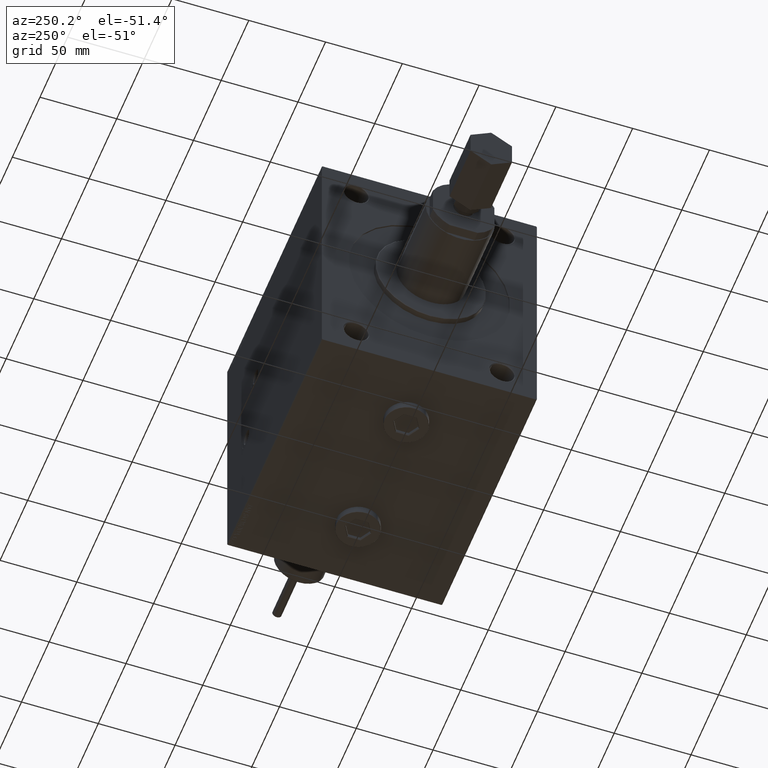
[diagram: clean part render]
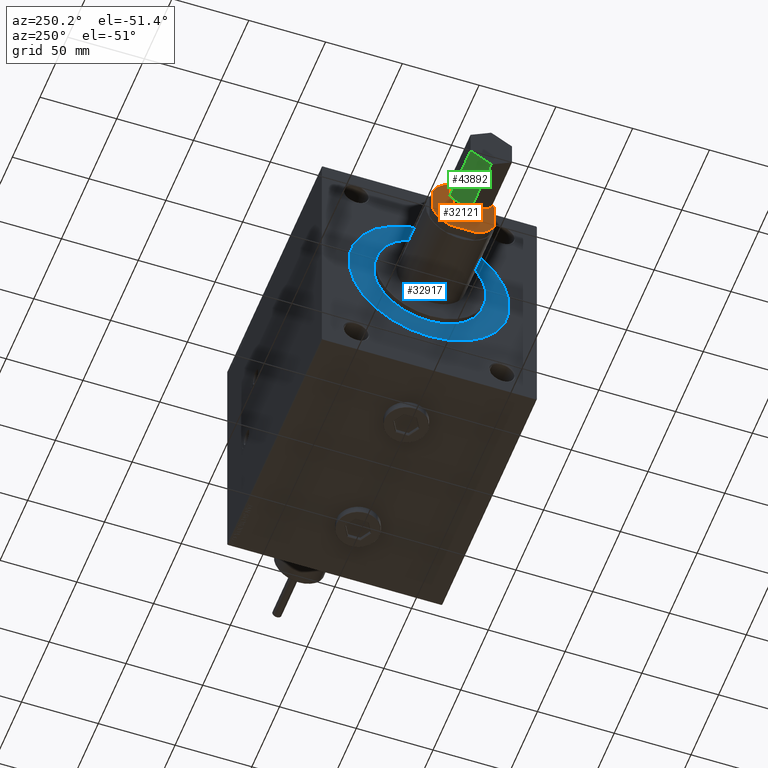
[diagram: same view with three faces highlighted in distinct colors, each labeled with its STEP entity id]
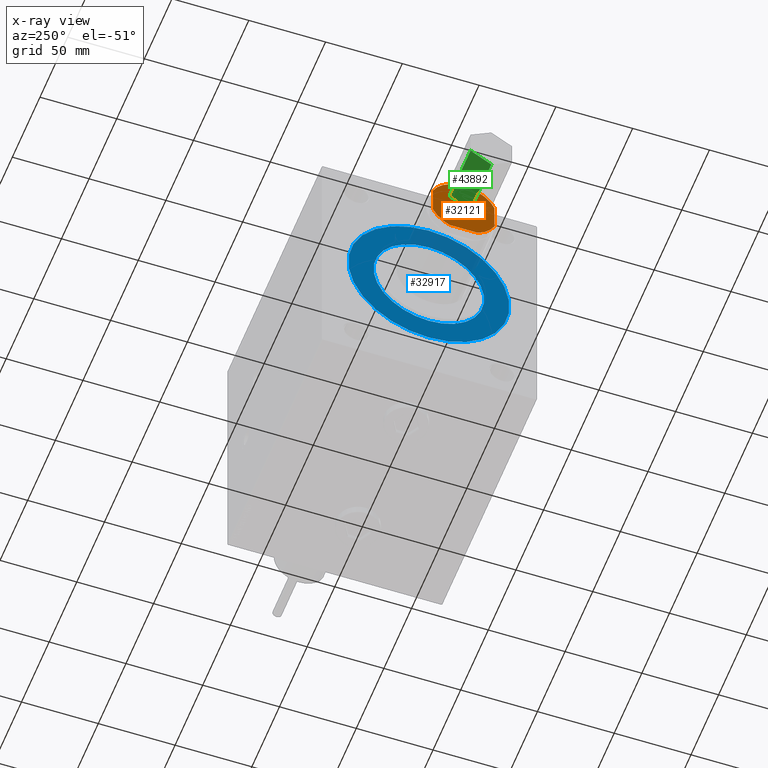
[diagram: x-ray of the same camera — body ghosted, the three highlighted faces saturated]
A machine part, auxiliary view with three faces highlighted in distinct colors.
The next image is the same camera in x-ray (body ghosted, the three faces saturated) — at least one of them is partly hidden behind the body in this view.
Their STEP definitions:

[orange] entity #32121 — the highlighted planar face has unit normal (-1, 0, 0).
#26 = CIRCLE ( 'NONE', #26834, 22.00000000000000000 ) ;
#205 = DIRECTION ( 'NONE',  ( -1.000000000000000000, -0.000000000000000000, -0.000000000000000000 ) ) ;
#412 = EDGE_LOOP ( 'NONE', ( #30623, #46969 ) ) ;
#1604 = CIRCLE ( 'NONE', #14193, 22.00000000000000000 ) ;
#2417 = VERTEX_POINT ( 'NONE', #11080 ) ;
#2530 = VERTEX_POINT ( 'NONE', #19348 ) ;
#4148 = CIRCLE ( 'NONE', #42751, 6.735000000000000320 ) ;
#4208 = DIRECTION ( 'NONE',  ( -1.000000000000000000, -0.000000000000000000, -0.000000000000000000 ) ) ;
#4359 = EDGE_CURVE ( 'NONE', #4792, #29156, #4893, .T. ) ;
#4607 = VERTEX_POINT ( 'NONE', #35273 ) ;
#4792 = VERTEX_POINT ( 'NONE', #10564 ) ;
#4893 = CIRCLE ( 'NONE', #23806, 6.735000000000000320 ) ;
#5033 = EDGE_LOOP ( 'NONE', ( #33528, #44550, #20747, #24198, #8564, #44807, #24634, #9821 ) ) ;
#5392 = CARTESIAN_POINT ( 'NONE',  ( 62.00000000000000000, 0.000000000000000000, 0.000000000000000000 ) ) ;
#5512 = VERTEX_POINT ( 'NONE', #29787 ) ;
#5820 = VECTOR ( 'NONE', #28017, 1000.000000000000000 ) ;
#6101 = DIRECTION ( 'NONE',  ( 1.000000000000000000, 0.000000000000000000, 0.000000000000000000 ) ) ;
#6414 = EDGE_CURVE ( 'NONE', #29036, #40839, #14380, .T. ) ;
#7703 = FACE_BOUND ( 'NONE', #412, .T. ) ;
#7949 = PLANE ( 'NONE',  #14939 ) ;
#8155 = AXIS2_PLACEMENT_3D ( 'NONE', #23404, #205, #15767 ) ;
#8454 = DIRECTION ( 'NONE',  ( 0.000000000000000000, 0.000000000000000000, -1.000000000000000000 ) ) ;
#8564 = ORIENTED_EDGE ( 'NONE', *, *, #6414, .F. ) ;
#9821 = ORIENTED_EDGE ( 'NONE', *, *, #11838, .T. ) ;
#10321 = VECTOR ( 'NONE', #11503, 1000.000000000000000 ) ;
#10564 = CARTESIAN_POINT ( 'NONE',  ( 62.00000000000000000, 8.247996192257424692E-16, -6.735000000000000320 ) ) ;
#11080 = CARTESIAN_POINT ( 'NONE',  ( 62.00000000000000000, 19.99999999999999645, 9.165151389911686763 ) ) ;
#11503 = DIRECTION ( 'NONE',  ( 0.000000000000000000, 0.000000000000000000, -1.000000000000000000 ) ) ;
#11838 = EDGE_CURVE ( 'NONE', #2530, #5512, #20703, .T. ) ;
#11865 = CARTESIAN_POINT ( 'NONE',  ( 62.00000000000000000, 0.000000000000000000, 0.000000000000000000 ) ) ;
#12002 = LINE ( 'NONE', #42818, #5820 ) ;
#13224 = VERTEX_POINT ( 'NONE', #14376 ) ;
#13585 = CARTESIAN_POINT ( 'NONE',  ( 62.00000000000000000, 9.165151389911683211, -19.99999999999999645 ) ) ;
#14193 = AXIS2_PLACEMENT_3D ( 'NONE', #22256, #38732, #27395 ) ;
#14376 = CARTESIAN_POINT ( 'NONE',  ( 62.00000000000000000, -20.00000000000000711, 9.165151389911661894 ) ) ;
#14380 = CIRCLE ( 'NONE', #31726, 22.00000000000000000 ) ;
#14939 = AXIS2_PLACEMENT_3D ( 'NONE', #31138, #31381, #8454 ) ;
#15767 = DIRECTION ( 'NONE',  ( 0.000000000000000000, 0.000000000000000000, -1.000000000000000000 ) ) ;
#16846 = VECTOR ( 'NONE', #35006, 1000.000000000000000 ) ;
#17537 = CARTESIAN_POINT ( 'NONE',  ( 62.00000000000000000, 0.000000000000000000, 0.000000000000000000 ) ) ;
#17974 = CARTESIAN_POINT ( 'NONE',  ( 62.00000000000000000, -20.00000000000000711, 19.99999999999999645 ) ) ;
#19348 = CARTESIAN_POINT ( 'NONE',  ( 62.00000000000000000, 9.165151389911672553, 20.00000000000000000 ) ) ;
#20202 = LINE ( 'NONE', #46590, #16846 ) ;
#20703 = LINE ( 'NONE', #43151, #23907 ) ;
#20747 = ORIENTED_EDGE ( 'NONE', *, *, #38113, .F. ) ;
#21135 = DIRECTION ( 'NONE',  ( 0.000000000000000000, 0.000000000000000000, -1.000000000000000000 ) ) ;
#22256 = CARTESIAN_POINT ( 'NONE',  ( 62.00000000000000000, 0.000000000000000000, 0.000000000000000000 ) ) ;
#23404 = CARTESIAN_POINT ( 'NONE',  ( 62.00000000000000000, 0.000000000000000000, 0.000000000000000000 ) ) ;
#23806 = AXIS2_PLACEMENT_3D ( 'NONE', #17537, #47629, #28877 ) ;
#23907 = VECTOR ( 'NONE', #28338, 1000.000000000000000 ) ;
#24198 = ORIENTED_EDGE ( 'NONE', *, *, #47796, .T. ) ;
#24634 = ORIENTED_EDGE ( 'NONE', *, *, #36928, .F. ) ;
#24837 = CARTESIAN_POINT ( 'NONE',  ( 62.00000000000000000, 0.000000000000000000, 0.000000000000000000 ) ) ;
#26834 = AXIS2_PLACEMENT_3D ( 'NONE', #11865, #4208, #41688 ) ;
#26941 = CARTESIAN_POINT ( 'NONE',  ( 62.00000000000000000, 0.000000000000000000, 6.735000000000000320 ) ) ;
#27395 = DIRECTION ( 'NONE',  ( 0.000000000000000000, 0.000000000000000000, -1.000000000000000000 ) ) ;
#28017 = DIRECTION ( 'NONE',  ( -0.000000000000000000, 1.000000000000000000, 1.734723475976807094E-16 ) ) ;
#28306 = DIRECTION ( 'NONE',  ( -1.000000000000000000, -0.000000000000000000, -0.000000000000000000 ) ) ;
#28338 = DIRECTION ( 'NONE',  ( 0.000000000000000000, -1.000000000000000000, -1.734723475976807094E-16 ) ) ;
#28877 = DIRECTION ( 'NONE',  ( 0.000000000000000000, 0.000000000000000000, -1.000000000000000000 ) ) ;
#29036 = VERTEX_POINT ( 'NONE', #29645 ) ;
#29156 = VERTEX_POINT ( 'NONE', #26941 ) ;
#29645 = CARTESIAN_POINT ( 'NONE',  ( 62.00000000000000000, 19.99999999999999289, -9.165151389911692092 ) ) ;
#29787 = CARTESIAN_POINT ( 'NONE',  ( 62.00000000000000000, -9.165151389911684987, 19.99999999999999645 ) ) ;
#30623 = ORIENTED_EDGE ( 'NONE', *, *, #42325, .F. ) ;
#31138 = CARTESIAN_POINT ( 'NONE',  ( 62.00000000000000000, 0.000000000000000000, 0.000000000000000000 ) ) ;
#31381 = DIRECTION ( 'NONE',  ( 1.000000000000000000, 0.000000000000000000, 0.000000000000000000 ) ) ;
#31726 = AXIS2_PLACEMENT_3D ( 'NONE', #5392, #28306, #36424 ) ;
#32121 = ADVANCED_FACE ( 'NONE', ( #7703, #45427 ), #7949, .T. ) ;
#33528 = ORIENTED_EDGE ( 'NONE', *, *, #43994, .F. ) ;
#35006 = DIRECTION ( 'NONE',  ( -0.000000000000000000, -0.000000000000000000, 1.000000000000000000 ) ) ;
#35112 = CARTESIAN_POINT ( 'NONE',  ( 62.00000000000000000, -9.165151389911672553, -20.00000000000000000 ) ) ;
#35273 = CARTESIAN_POINT ( 'NONE',  ( 62.00000000000000000, -20.00000000000001066, -9.165151389911651236 ) ) ;
#36424 = DIRECTION ( 'NONE',  ( 0.000000000000000000, 0.000000000000000000, -1.000000000000000000 ) ) ;
#36466 = CIRCLE ( 'NONE', #8155, 22.00000000000000000 ) ;
#36928 = EDGE_CURVE ( 'NONE', #2530, #2417, #1604, .T. ) ;
#38113 = EDGE_CURVE ( 'NONE', #42701, #4607, #26, .T. ) ;
#38732 = DIRECTION ( 'NONE',  ( -1.000000000000000000, -0.000000000000000000, -0.000000000000000000 ) ) ;
#38883 = EDGE_CURVE ( 'NONE', #13224, #4607, #46029, .T. ) ;
#40839 = VERTEX_POINT ( 'NONE', #13585 ) ;
#41688 = DIRECTION ( 'NONE',  ( 0.000000000000000000, 0.000000000000000000, -1.000000000000000000 ) ) ;
#42325 = EDGE_CURVE ( 'NONE', #29156, #4792, #4148, .T. ) ;
#42701 = VERTEX_POINT ( 'NONE', #35112 ) ;
#42751 = AXIS2_PLACEMENT_3D ( 'NONE', #24837, #6101, #21135 ) ;
#42818 = CARTESIAN_POINT ( 'NONE',  ( 62.00000000000000000, 19.99999999999999289, -19.99999999999999645 ) ) ;
#43151 = CARTESIAN_POINT ( 'NONE',  ( 62.00000000000000000, 19.99999999999999289, 20.00000000000000355 ) ) ;
#43994 = EDGE_CURVE ( 'NONE', #13224, #5512, #36466, .T. ) ;
#44550 = ORIENTED_EDGE ( 'NONE', *, *, #38883, .T. ) ;
#44807 = ORIENTED_EDGE ( 'NONE', *, *, #48287, .T. ) ;
#45427 = FACE_OUTER_BOUND ( 'NONE', #5033, .T. ) ;
#46029 = LINE ( 'NONE', #17974, #10321 ) ;
#46590 = CARTESIAN_POINT ( 'NONE',  ( 62.00000000000000000, 19.99999999999999289, 20.00000000000000355 ) ) ;
#46969 = ORIENTED_EDGE ( 'NONE', *, *, #4359, .F. ) ;
#47629 = DIRECTION ( 'NONE',  ( 1.000000000000000000, 0.000000000000000000, 0.000000000000000000 ) ) ;
#47796 = EDGE_CURVE ( 'NONE', #42701, #40839, #12002, .T. ) ;
#48287 = EDGE_CURVE ( 'NONE', #29036, #2417, #20202, .T. ) ;

[blue] entity #32917 — the highlighted planar face has unit normal (-1, 0, 0).
#1075 = CIRCLE ( 'NONE', #44387, 36.00000000000000000 ) ;
#1538 = DIRECTION ( 'NONE',  ( 0.000000000000000000, 0.000000000000000000, -1.000000000000000000 ) ) ;
#1901 = AXIS2_PLACEMENT_3D ( 'NONE', #25513, #25754, #33630 ) ;
#2534 = DIRECTION ( 'NONE',  ( 0.000000000000000000, 0.000000000000000000, -1.000000000000000000 ) ) ;
#6148 = AXIS2_PLACEMENT_3D ( 'NONE', #25942, #36562, #2534 ) ;
#8270 = VERTEX_POINT ( 'NONE', #39932 ) ;
#8556 = AXIS2_PLACEMENT_3D ( 'NONE', #36813, #18072, #33109 ) ;
#8849 = CARTESIAN_POINT ( 'NONE',  ( 170.1999999999999886, 0.000000000000000000, 0.000000000000000000 ) ) ;
#9195 = PLANE ( 'NONE',  #12648 ) ;
#9647 = EDGE_CURVE ( 'NONE', #47895, #28787, #43635, .T. ) ;
#12648 = AXIS2_PLACEMENT_3D ( 'NONE', #45939, #46674, #1538 ) ;
#14832 = CIRCLE ( 'NONE', #8556, 52.50000000000000000 ) ;
#15860 = FACE_OUTER_BOUND ( 'NONE', #44502, .T. ) ;
#18072 = DIRECTION ( 'NONE',  ( 1.000000000000000000, 0.000000000000000000, 0.000000000000000000 ) ) ;
#20663 = DIRECTION ( 'NONE',  ( 0.000000000000000000, 0.000000000000000000, -1.000000000000000000 ) ) ;
#24088 = EDGE_LOOP ( 'NONE', ( #26880, #41282 ) ) ;
#25513 = CARTESIAN_POINT ( 'NONE',  ( 170.1999999999999886, 0.000000000000000000, 0.000000000000000000 ) ) ;
#25521 = CARTESIAN_POINT ( 'NONE',  ( 170.1999999999999886, 4.408728476930470856E-15, -36.00000000000000000 ) ) ;
#25754 = DIRECTION ( 'NONE',  ( 1.000000000000000000, 0.000000000000000000, 0.000000000000000000 ) ) ;
#25942 = CARTESIAN_POINT ( 'NONE',  ( 170.1999999999999886, 0.000000000000000000, 0.000000000000000000 ) ) ;
#26171 = VERTEX_POINT ( 'NONE', #27910 ) ;
#26880 = ORIENTED_EDGE ( 'NONE', *, *, #47572, .F. ) ;
#27910 = CARTESIAN_POINT ( 'NONE',  ( 170.1999999999999886, 6.429395695523603956E-15, 52.50000000000000000 ) ) ;
#28098 = EDGE_CURVE ( 'NONE', #8270, #26171, #36867, .T. ) ;
#28787 = VERTEX_POINT ( 'NONE', #34650 ) ;
#29124 = EDGE_CURVE ( 'NONE', #26171, #8270, #14832, .T. ) ;
#31634 = FACE_BOUND ( 'NONE', #24088, .T. ) ;
#32917 = ADVANCED_FACE ( 'NONE', ( #31634, #15860 ), #9195, .T. ) ;
#33109 = DIRECTION ( 'NONE',  ( 0.000000000000000000, 0.000000000000000000, -1.000000000000000000 ) ) ;
#33630 = DIRECTION ( 'NONE',  ( 0.000000000000000000, 0.000000000000000000, -1.000000000000000000 ) ) ;
#34650 = CARTESIAN_POINT ( 'NONE',  ( 170.1999999999999886, 0.000000000000000000, 36.00000000000000000 ) ) ;
#36562 = DIRECTION ( 'NONE',  ( 1.000000000000000000, 0.000000000000000000, 0.000000000000000000 ) ) ;
#36813 = CARTESIAN_POINT ( 'NONE',  ( 170.1999999999999886, 0.000000000000000000, 0.000000000000000000 ) ) ;
#36867 = CIRCLE ( 'NONE', #6148, 52.50000000000000000 ) ;
#38680 = DIRECTION ( 'NONE',  ( 1.000000000000000000, 0.000000000000000000, 0.000000000000000000 ) ) ;
#39932 = CARTESIAN_POINT ( 'NONE',  ( 170.1999999999999886, 0.000000000000000000, -52.50000000000000000 ) ) ;
#39999 = ORIENTED_EDGE ( 'NONE', *, *, #28098, .T. ) ;
#41282 = ORIENTED_EDGE ( 'NONE', *, *, #9647, .F. ) ;
#43635 = CIRCLE ( 'NONE', #1901, 36.00000000000000000 ) ;
#44387 = AXIS2_PLACEMENT_3D ( 'NONE', #8849, #38680, #20663 ) ;
#44502 = EDGE_LOOP ( 'NONE', ( #39999, #48753 ) ) ;
#45939 = CARTESIAN_POINT ( 'NONE',  ( 170.1999999999999886, 0.000000000000000000, 0.000000000000000000 ) ) ;
#46674 = DIRECTION ( 'NONE',  ( 1.000000000000000000, 0.000000000000000000, 0.000000000000000000 ) ) ;
#47572 = EDGE_CURVE ( 'NONE', #28787, #47895, #1075, .T. ) ;
#47895 = VERTEX_POINT ( 'NONE', #25521 ) ;
#48753 = ORIENTED_EDGE ( 'NONE', *, *, #29124, .T. ) ;

[green] entity #43892 — the highlighted planar face has unit normal (0, -0.5, 0.866).
#591 = ORIENTED_EDGE ( 'NONE', *, *, #10859, .T. ) ;
#2701 = DIRECTION ( 'NONE',  ( 0.000000000000000000, -0.8660254037844388186, 0.4999999999999997224 ) ) ;
#4110 = DIRECTION ( 'NONE',  ( 0.000000000000000000, 0.4999999999999996669, 0.8660254037844388186 ) ) ;
#5576 = VERTEX_POINT ( 'NONE', #7610 ) ;
#5964 = LINE ( 'NONE', #46431, #31756 ) ;
#6228 = CARTESIAN_POINT ( 'NONE',  ( 112.0000000000000142, 15.58845726811989252, 0.000000000000000000 ) ) ;
#6704 = VECTOR ( 'NONE', #4110, 1000.000000000000114 ) ;
#6893 = PLANE ( 'NONE',  #25457 ) ;
#7610 = CARTESIAN_POINT ( 'NONE',  ( 74.00000000000001421, 15.58845726811989252, 0.000000000000000000 ) ) ;
#8125 = ORIENTED_EDGE ( 'NONE', *, *, #16962, .T. ) ;
#10232 = VERTEX_POINT ( 'NONE', #47498 ) ;
#10642 = LINE ( 'NONE', #41446, #37098 ) ;
#10859 = EDGE_CURVE ( 'NONE', #10232, #23952, #5964, .T. ) ;
#12153 = EDGE_LOOP ( 'NONE', ( #8125, #15104, #45227, #591 ) ) ;
#13019 = EDGE_CURVE ( 'NONE', #43616, #5576, #21601, .T. ) ;
#13683 = CARTESIAN_POINT ( 'NONE',  ( 74.00000000000001421, 7.794228634059952476, -13.49999999999999822 ) ) ;
#14530 = FACE_OUTER_BOUND ( 'NONE', #12153, .T. ) ;
#15104 = ORIENTED_EDGE ( 'NONE', *, *, #13019, .F. ) ;
#16962 = EDGE_CURVE ( 'NONE', #23952, #5576, #28796, .T. ) ;
#21397 = CARTESIAN_POINT ( 'NONE',  ( 74.00000000000001421, 7.794228634059952476, -13.49999999999999822 ) ) ;
#21601 = LINE ( 'NONE', #47749, #37317 ) ;
#23952 = VERTEX_POINT ( 'NONE', #13683 ) ;
#25457 = AXIS2_PLACEMENT_3D ( 'NONE', #33750, #2701, #48068 ) ;
#28796 = LINE ( 'NONE', #21397, #6704 ) ;
#31388 = DIRECTION ( 'NONE',  ( -1.000000000000000000, -0.000000000000000000, -0.000000000000000000 ) ) ;
#31756 = VECTOR ( 'NONE', #31388, 1000.000000000000000 ) ;
#33750 = CARTESIAN_POINT ( 'NONE',  ( 112.0000000000000142, 7.794228634059952476, -13.49999999999999822 ) ) ;
#36878 = DIRECTION ( 'NONE',  ( -1.000000000000000000, -0.000000000000000000, -0.000000000000000000 ) ) ;
#37098 = VECTOR ( 'NONE', #40954, 1000.000000000000114 ) ;
#37317 = VECTOR ( 'NONE', #36878, 1000.000000000000000 ) ;
#38477 = EDGE_CURVE ( 'NONE', #10232, #43616, #10642, .T. ) ;
#40954 = DIRECTION ( 'NONE',  ( 0.000000000000000000, 0.4999999999999996669, 0.8660254037844388186 ) ) ;
#41446 = CARTESIAN_POINT ( 'NONE',  ( 112.0000000000000142, 7.794228634059952476, -13.49999999999999822 ) ) ;
#43616 = VERTEX_POINT ( 'NONE', #6228 ) ;
#43892 = ADVANCED_FACE ( 'NONE', ( #14530 ), #6893, .F. ) ;
#45227 = ORIENTED_EDGE ( 'NONE', *, *, #38477, .F. ) ;
#46431 = CARTESIAN_POINT ( 'NONE',  ( 112.0000000000000142, 7.794228634059952476, -13.49999999999999822 ) ) ;
#47498 = CARTESIAN_POINT ( 'NONE',  ( 112.0000000000000142, 7.794228634059952476, -13.49999999999999822 ) ) ;
#47749 = CARTESIAN_POINT ( 'NONE',  ( 112.0000000000000142, 15.58845726811989252, 0.000000000000000000 ) ) ;
#48068 = DIRECTION ( 'NONE',  ( 0.000000000000000000, -0.4999999999999997224, -0.8660254037844388186 ) ) ;